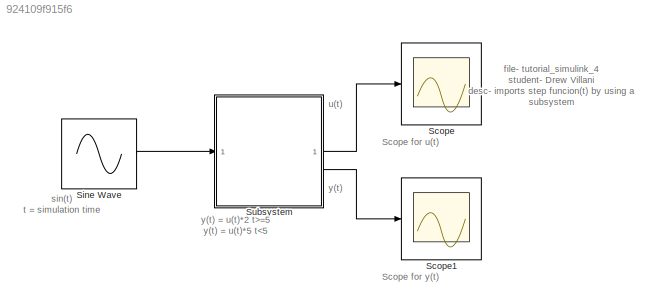
MODEL slx_924109f915f6
KIND model
CONFIG AbsTol = auto
CONFIG EnableMultiTasking = off
CONFIG FixedStep = auto
CONFIG MaxStep = auto
CONFIG MinStep = auto
CONFIG RelTol = 1e-3
CONFIG SampleTimeConstraint = Unconstrained
CONFIG SolverName = VariableStepAuto
CONFIG StartTime = 0.0
CONFIG StopTime = 10.0
BLOCK [Scope] Scope
  Floating = off
  NumInputPorts = 1
  ScopeSpecificationString = Simulink.scopes.TimeScopeBlockCfg('CurrentConfiguration', extmgr.ConfigurationSet(extmgr.Configuration('Core','General UI',true),extmgr.Configuration('Core','Source UI',true),extmgr.Configuration('Sources','WiredSimulink',true),extmgr.Configuration('Visuals','Time Domain',true,'SerializedDisplays',{struct('MinYLimReal','-6.22816','MaxYLimReal','6.2452','YLabelReal','','MinYLimMag','0.00000','MaxYL...<+1458ch>
BLOCK [Scope] Scope1
  Floating = off
  NumInputPorts = 1
  ScopeSpecificationString = Simulink.scopes.TimeScopeBlockCfg('CurrentConfiguration', extmgr.ConfigurationSet(extmgr.Configuration('Core','General UI',true),extmgr.Configuration('Core','Source UI',true),extmgr.Configuration('Sources','WiredSimulink',true,'DataLoggingVariableName','ScopeData1'),extmgr.Configuration('Visuals','Time Domain',true,'SerializedDisplays',{struct('MinYLimReal','-1.24563','MaxYLimReal','1.24904','YLab...<+1488ch>
BLOCK [Sin] Sine Wave
  SampleTime = 0
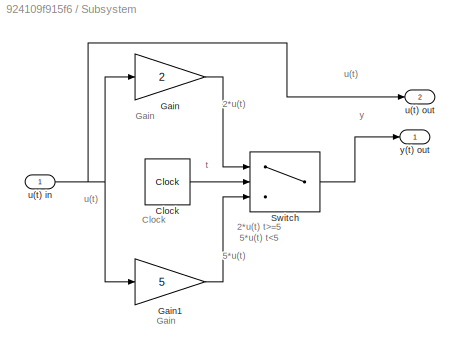
BLOCK [SubSystem] Subsystem
BLOCK [Clock] Subsystem/Clock
BLOCK [Gain] Subsystem/Gain
  Gain = 2
BLOCK [Gain] Subsystem/Gain1
  Gain = 5
BLOCK [Switch] Subsystem/Switch
  Criteria = u2 > Threshold
  InputSameDT = off
  SaturateOnIntegerOverflow = off
  Threshold = 5
BLOCK [Inport] Subsystem/u(t) in
BLOCK [Outport] Subsystem/u(t) out
  Port = 2
BLOCK [Outport] Subsystem/y(t) out
ANNOTATION (root): Scope for u(t)
ANNOTATION (root): Scope for y(t)
ANNOTATION (root): file- tutorial_simulink_4 student- Drew Villani desc- imports step funcion(t) by using a subsystem
ANNOTATION (root): sin(t) t = simulation time
ANNOTATION (root): u(t)
ANNOTATION (root): y(t)
ANNOTATION (root): y(t) = u(t)*2 t>=5 y(t) = u(t)*5 t<5
ANNOTATION Subsystem: 2*u(t)
ANNOTATION Subsystem: 2*u(t) t>=5 5*u(t) t<5
ANNOTATION Subsystem: 5*u(t)
ANNOTATION Subsystem: Clock
ANNOTATION Subsystem: Gain
ANNOTATION Subsystem: t
ANNOTATION Subsystem: u(t)
ANNOTATION Subsystem: y
LINE Sine Wave:1 -> Subsystem:1
LINE Subsystem/Clock:1 -> Subsystem/Switch:2
LINE Subsystem/Gain1:1 -> Subsystem/Switch:3
LINE Subsystem/Gain:1 -> Subsystem/Switch:1
LINE Subsystem/Switch:1 -> Subsystem/y(t) out:1
NET Subsystem/u(t) in:1 -> Subsystem/Gain1:1, Subsystem/Gain:1, Subsystem/u(t) out:1
LINE Subsystem:1 -> Scope:1
LINE Subsystem:2 -> Scope1:1
note: NET lines group one-source signal fan-out (src -> all destinations, sorted); 1:1 wires keep LINE
